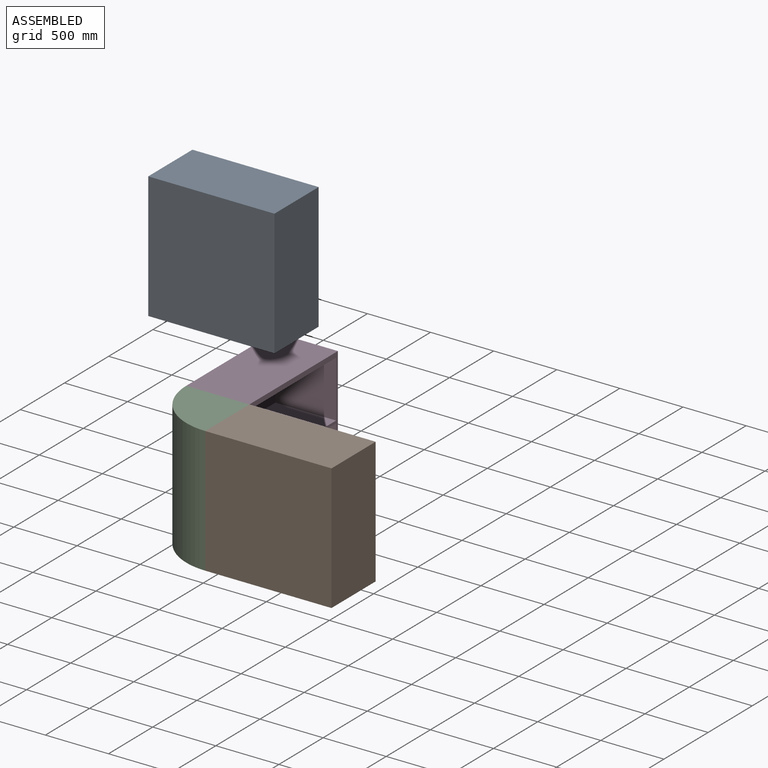
[diagram: assembled view]
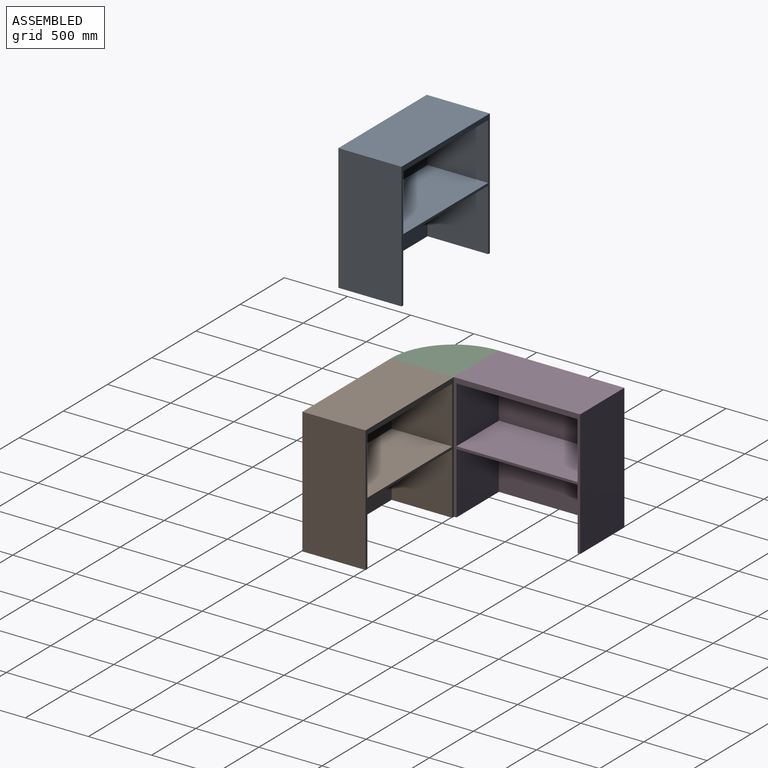
[diagram: assembled view, second angle]
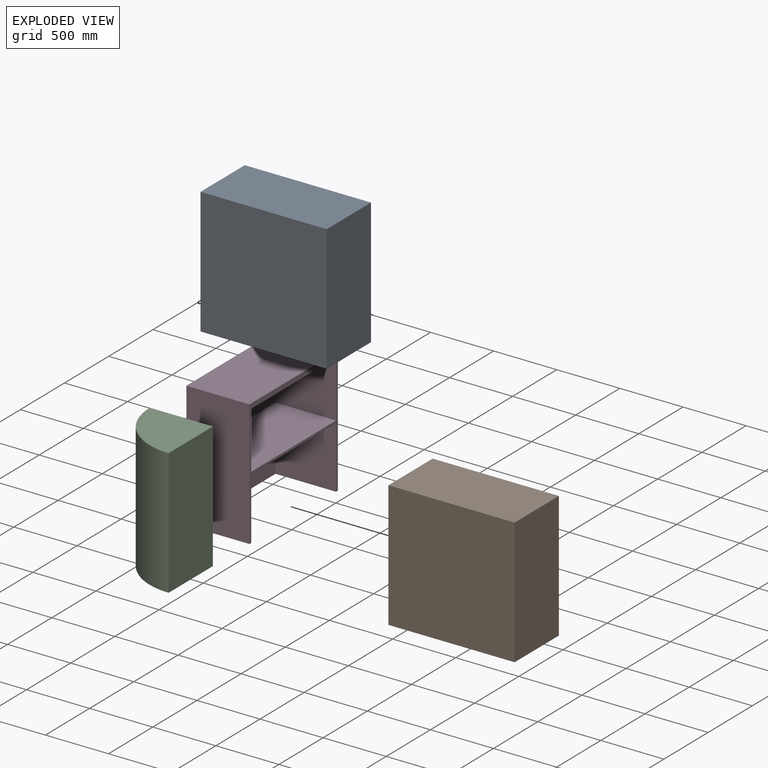
[diagram: exploded view]
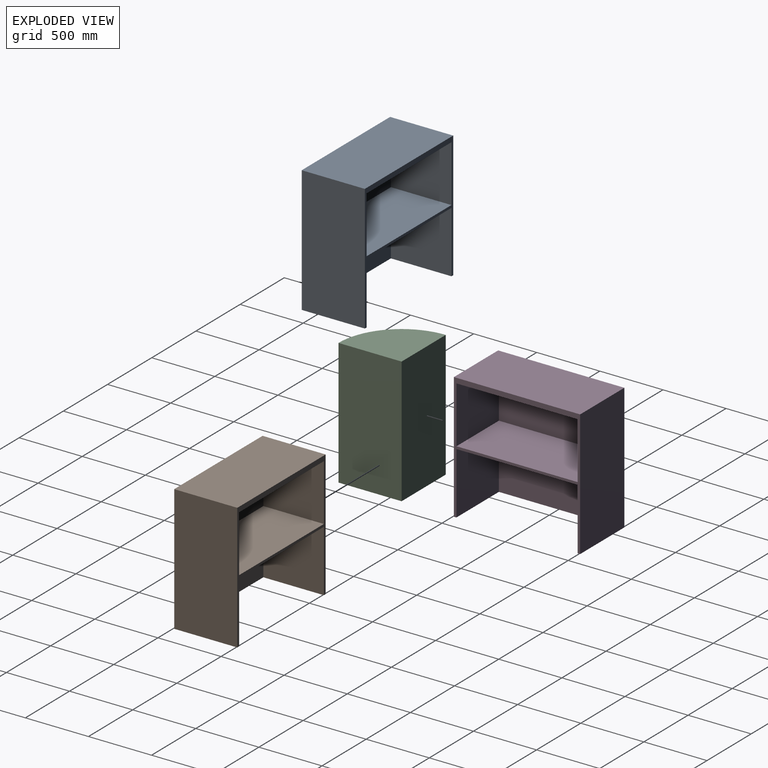
[diagram: exploded view, second angle]
ASSEMBLY  parts=4 mates=2
PART A: 15 faces, bbox 1000x500x1000 mm
  f0: plane 480x450mm, normal (1,0,0), area 216000mm2, adj f1,f9,f10,f11
  f1: plane 1000x1000mm, normal (0,1,0), area 97600mm2, adj f0,f2,f4,f5,f6,f8,f9,f11
  f2: plane 1000x500mm, normal (0,0,1), area 500000mm2, adj f1,f3,f5,f13
  f3: plane 1000x1000mm, normal (0,-1,0), area 1000000mm2, adj f2,f4,f5,f13
  f4: plane 1000x500mm, normal (0,0,-1), area 39200mm2, adj f1,f3,f5,f6,f7,f13,f14
  f5: plane 1000x500mm, normal (-1,0,0), area 500000mm2, adj f1,f2,f3,f4
  f6: plane 490x480mm, normal (1,0,0), area 235200mm2, adj f1,f4,f7,f8
  f7: plane 960x490mm, normal (0,1,0), area 470400mm2, adj f4,f6,f8,f14
  f8: plane 960x480mm, normal (0,0,-1), area 460800mm2, adj f1,f6,f7,f14
  f9: plane 960x480mm, normal (0,0,1), area 460800mm2, adj f0,f1,f10,f12
  f10: plane 960x450mm, normal (0,1,0), area 432000mm2, adj f0,f9,f11,f12
  f11: plane 960x480mm, normal (0,0,-1), area 460800mm2, adj f0,f1,f10,f12
  f12: plane 480x450mm, normal (-1,0,0), area 216000mm2, adj f1,f9,f10,f11
  f13: plane 1000x500mm, normal (1,0,0), area 500000mm2, adj f1,f2,f3,f4
  f14: plane 490x480mm, normal (-1,0,0), area 235200mm2, adj f1,f4,f7,f8
PART B: same geometry as A
PART C: 5 faces, bbox 500x500x1000 mm
  f0: plane 1000x500mm, normal (1,0,0), area 500000mm2, adj f1,f2,f3,f4
  f1: plane 1000x500mm, normal (0,1,0), area 500000mm2, adj f0,f2,f3,f4
  f2: cylinder r=500mm len=1000mm, axis (0,0,1), area 785398.2mm2, adj f0,f1,f3,f4
  f3: plane 500x500mm, normal (0,0,-1), area 196349.5mm2, adj f0,f1,f2
  f4: plane 500x500mm, normal (0,0,1), area 196349.5mm2, adj f0,f1,f2
PART D: same geometry as A
PLACE A t=(-450.69,50.01,-75.37)mm
PLACE B t=(-13.71,71.35,-1790.51)mm
PLACE C t=(-13.71,71.35,-1790.51)mm
PLACE D rot(axis=(0,0,-1),90deg) t=(-533.71,1551.35,-1790.51)mm
MATE fastened C.f0 <-> B.f5  axis (1,0,0) through (-33.71,321.35,-1290.51)mm
MATE fastened C.f1 <-> D.f13  axis (0,1,0) through (-283.71,571.35,-1290.51)mm
